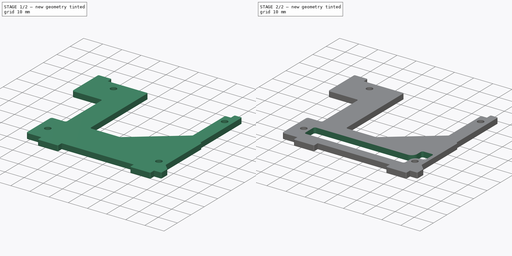
[diagram: build sequence overview — one tinted view per stage of 2, left to right]
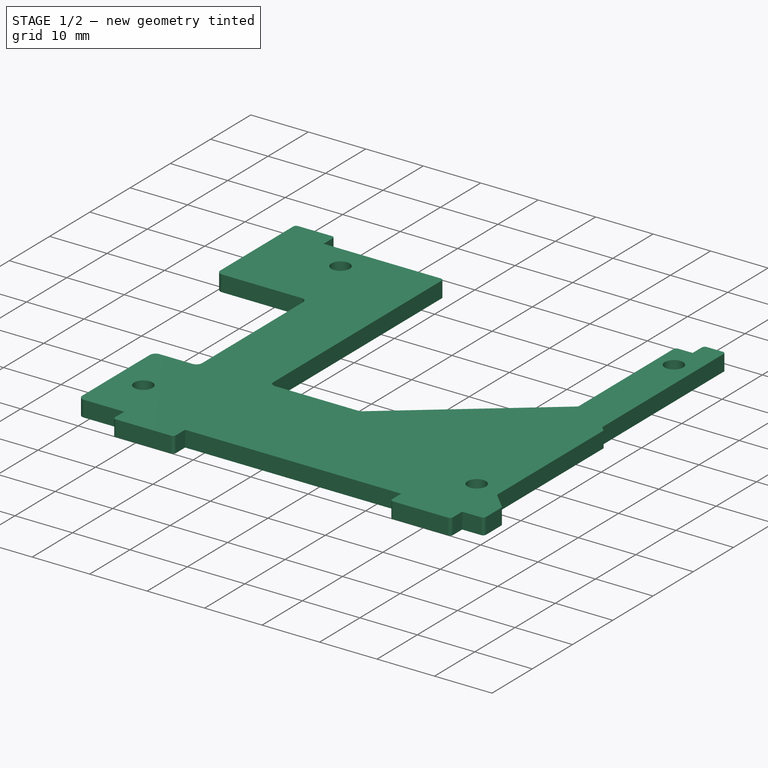
[diagram: stage 1 of 2 — iso view after this stage's code; geometry added in this stage tinted green]
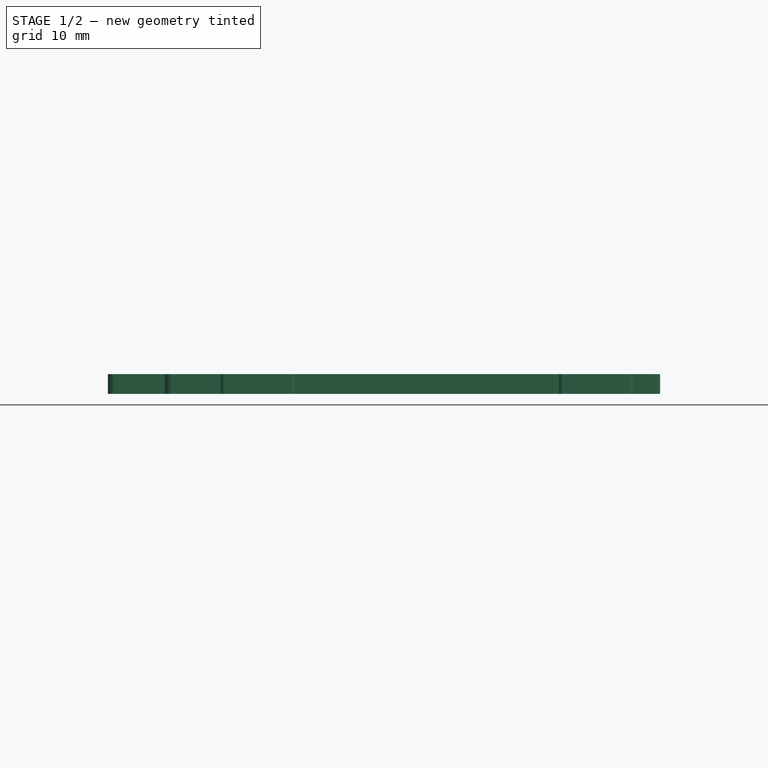
[diagram: stage 1 of 2 — front view after this stage's code; geometry added in this stage tinted green]
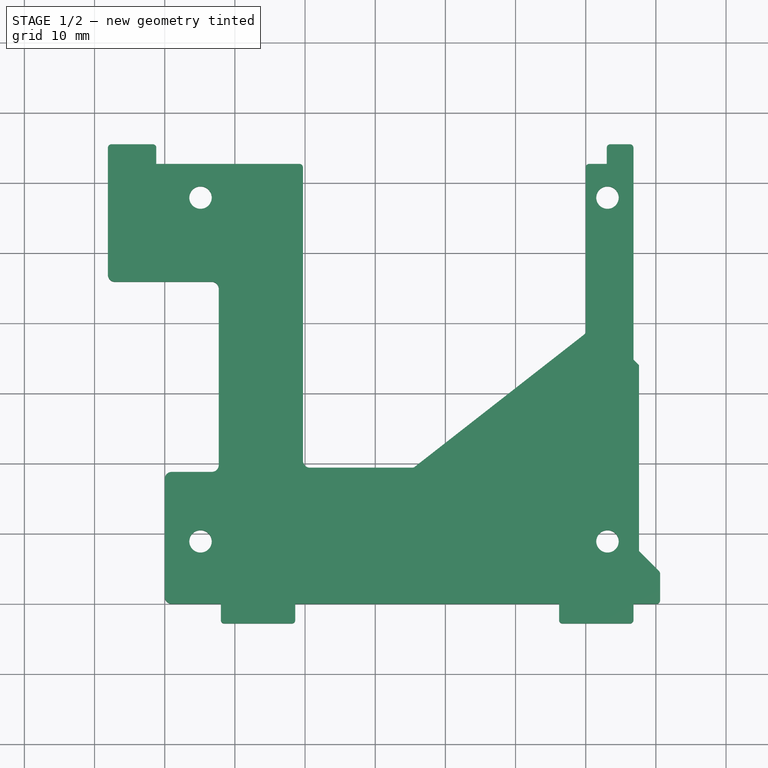
[diagram: stage 1 of 2 — top view after this stage's code; geometry added in this stage tinted green]
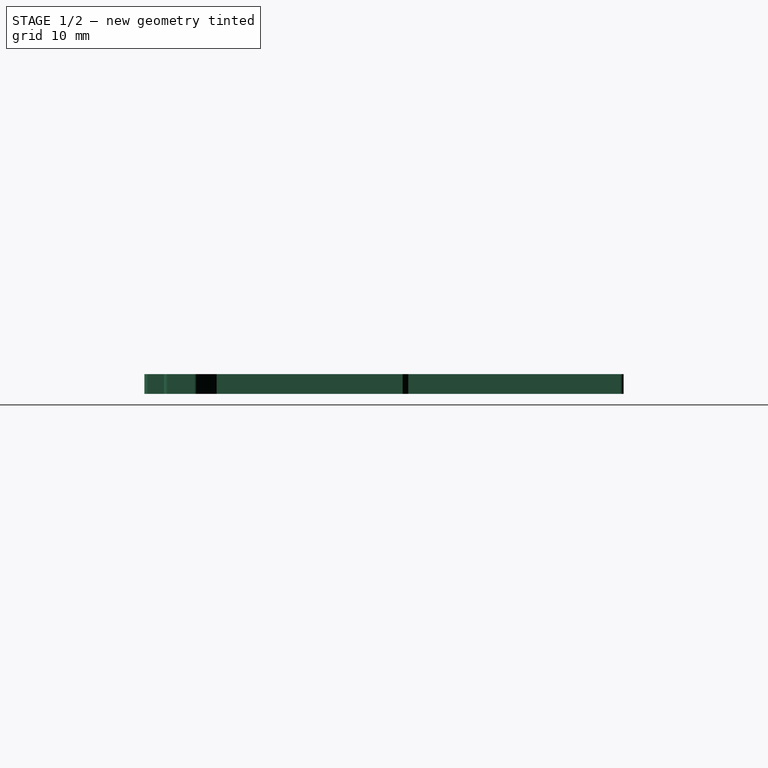
[diagram: stage 1 of 2 — right view after this stage's code; geometry added in this stage tinted green]
FCSTD DOCUMENT  (FreeCAD 0.21R33771 (Git))
Label: electronics_holder_old
License: All rights reserved
LicenseURL: http://en.wikipedia.org/wiki/All_rights_reserved
objects: Sketcher::SketchObject×2, PartDesign::Pad×1, PartDesign::Pocket×1, PartDesign::Body×1
note: 7 computed .brp shape members not serialized (recipe doc carries the construction recipe); baked Part::Feature solids carry a one-line shape summary decoded from their .brp

FEATURE [Sketcher::SketchObject] Sketch
  FullyConstrained = true
  MapMode = 5
  Support = -> [XY_Plane]
  sketch-geometry (57):
    g0: LineSegment StartX=1 StartY=0 StartZ=0 EndX=8 EndY=0 EndZ=0
    g1: LineSegment StartX=8 StartY=0 StartZ=0 EndX=8 EndY=-2.3 EndZ=0
    g2: LineSegment StartX=8.5 StartY=-2.8 StartZ=0 EndX=18.1 EndY=-2.8 EndZ=0
    g3: LineSegment StartX=18.6 StartY=-2.3 StartZ=0 EndX=18.6 EndY=0 EndZ=0
    g4: LineSegment StartX=18.6 StartY=0 StartZ=0 EndX=56.2 EndY=0 EndZ=0
    g5: LineSegment StartX=56.2 StartY=0 StartZ=0 EndX=56.2 EndY=-2.3 EndZ=0
    g6: LineSegment StartX=56.7 StartY=-2.8 StartZ=0 EndX=66.3 EndY=-2.8 EndZ=0
    g7: LineSegment StartX=66.8 StartY=-2.3 StartZ=0 EndX=66.8 EndY=0 EndZ=0
    g8: LineSegment StartX=66.8 StartY=0 StartZ=0 EndX=70.1 EndY=0 EndZ=0
    g9: LineSegment StartX=70.6 StartY=0.5 StartZ=0 EndX=70.6 EndY=4.29289 EndZ=0
    g10: LineSegment StartX=70.4536 StartY=4.64645 StartZ=0 EndX=67.6 EndY=7.5 EndZ=0
    g11: LineSegment StartX=67.6 StartY=7.5 StartZ=0 EndX=67.6 EndY=34 EndZ=0
    g12: LineSegment StartX=67.6 StartY=34 StartZ=0 EndX=66.8 EndY=34.8 EndZ=0
    g13: LineSegment StartX=66.8 StartY=34.8 StartZ=0 EndX=66.8 EndY=65 EndZ=0
    g14: LineSegment StartX=66.3 StartY=65.5 StartZ=0 EndX=63.5 EndY=65.5 EndZ=0
    g15: LineSegment StartX=63 StartY=65 StartZ=0 EndX=63 EndY=62.7 EndZ=0
    g16: LineSegment StartX=63 StartY=62.7 StartZ=0 EndX=60.5 EndY=62.7 EndZ=0
    g17: LineSegment StartX=60 StartY=62.2 StartZ=0 EndX=60 EndY=38.8 EndZ=0
    g18: LineSegment StartX=59.8078 StartY=38.4059 StartZ=0 EndX=35.6078 EndY=19.5059 EndZ=0
    g19: LineSegment StartX=35.3 StartY=19.4 StartZ=0 EndX=20.7 EndY=19.4 EndZ=0
    g20: LineSegment StartX=19.7 StartY=20.4 StartZ=0 EndX=19.7 EndY=62.2 EndZ=0
    g21: LineSegment StartX=19.2 StartY=62.7 StartZ=0 EndX=-1.2 EndY=62.7 EndZ=0
    g22: LineSegment StartX=-1.2 StartY=62.7 StartZ=0 EndX=-1.2 EndY=65 EndZ=0
    g23: LineSegment StartX=-1.7 StartY=65.5 StartZ=0 EndX=-7.6 EndY=65.5 EndZ=0
    g24: LineSegment StartX=-8.1 StartY=65 StartZ=0 EndX=-8.1 EndY=46.9 EndZ=0
    g25: LineSegment StartX=-7.1 StartY=45.9 StartZ=0 EndX=6.7 EndY=45.9 EndZ=0
    g26: LineSegment StartX=7.7 StartY=44.9 StartZ=0 EndX=7.7 EndY=19.8 EndZ=0
    g27: LineSegment StartX=6.7 StartY=18.8 StartZ=0 EndX=1 EndY=18.8 EndZ=0
    g28: LineSegment StartX=0 StartY=1 StartZ=0 EndX=0 EndY=17.8 EndZ=0
    g29: ArcOfCircle CenterX=6.7 CenterY=19.8 CenterZ=0 NormalX=0 NormalY=0 NormalZ=1 AngleXU=0 Radius=1 StartAngle=4.71239 EndAngle=6.28319
    g30: ArcOfCircle CenterX=6.7 CenterY=44.9 CenterZ=0 NormalX=0 NormalY=0 NormalZ=1 AngleXU=0 Radius=1 StartAngle=1.1e-15 EndAngle=1.5708
    g31: ArcOfCircle CenterX=-7.1 CenterY=46.9 CenterZ=0 NormalX=0 NormalY=0 NormalZ=1 AngleXU=0 Radius=1 StartAngle=3.14159 EndAngle=4.71239
    g32: ArcOfCircle CenterX=-7.6 CenterY=65 CenterZ=0 NormalX=0 NormalY=0 NormalZ=1 AngleXU=0 Radius=0.5 StartAngle=1.5708 EndAngle=3.14159
    g33: ArcOfCircle CenterX=-1.7 CenterY=65 CenterZ=0 NormalX=0 NormalY=0 NormalZ=1 AngleXU=0 Radius=0.5 StartAngle=-9.8e-15 EndAngle=1.5708
    g34: ArcOfCircle CenterX=19.2 CenterY=62.2 CenterZ=0 NormalX=0 NormalY=0 NormalZ=1 AngleXU=0 Radius=0.5 StartAngle=-1.8e-15 EndAngle=1.5708
    g35: ArcOfCircle CenterX=60.5 CenterY=62.2 CenterZ=0 NormalX=0 NormalY=0 NormalZ=1 AngleXU=0 Radius=0.5 StartAngle=1.5708 EndAngle=3.14159
    g36: ArcOfCircle CenterX=20.7 CenterY=20.4 CenterZ=0 NormalX=0 NormalY=0 NormalZ=1 AngleXU=0 Radius=1 StartAngle=3.14159 EndAngle=4.71239
    g37: ArcOfCircle CenterX=35.3 CenterY=19.9 CenterZ=0 NormalX=0 NormalY=0 NormalZ=1 AngleXU=0 Radius=0.5 StartAngle=4.71239 EndAngle=5.37543
    g38: ArcOfCircle CenterX=59.5 CenterY=38.8 CenterZ=0 NormalX=0 NormalY=0 NormalZ=1 AngleXU=0 Radius=0.5 StartAngle=5.37543 EndAngle=6.28319
    g39: ArcOfCircle CenterX=66.3 CenterY=65 CenterZ=0 NormalX=0 NormalY=0 NormalZ=1 AngleXU=0 Radius=0.5 StartAngle=6e-15 EndAngle=1.5708
    g40: ArcOfCircle CenterX=70.1 CenterY=0.5 CenterZ=0 NormalX=0 NormalY=0 NormalZ=1 AngleXU=0 Radius=0.5 StartAngle=4.71239 EndAngle=6.28319
    g41: ArcOfCircle CenterX=66.3 CenterY=-2.3 CenterZ=0 NormalX=0 NormalY=0 NormalZ=1 AngleXU=0 Radius=0.5 StartAngle=4.71239 EndAngle=6.28319
    g42: ArcOfCircle CenterX=56.7 CenterY=-2.3 CenterZ=0 NormalX=0 NormalY=0 NormalZ=1 AngleXU=0 Radius=0.5 StartAngle=3.14159 EndAngle=4.71239
    g43: ArcOfCircle CenterX=1 CenterY=17.8 CenterZ=0 NormalX=0 NormalY=0 NormalZ=1 AngleXU=0 Radius=1 StartAngle=1.5708 EndAngle=3.14159
    g44: ArcOfCircle CenterX=1 CenterY=1 CenterZ=0 NormalX=0 NormalY=0 NormalZ=1 AngleXU=0 Radius=1 StartAngle=3.14159 EndAngle=4.71239
    g45: ArcOfCircle CenterX=8.5 CenterY=-2.3 CenterZ=0 NormalX=0 NormalY=0 NormalZ=1 AngleXU=0 Radius=0.5 StartAngle=3.14159 EndAngle=4.71239
    g46: ArcOfCircle CenterX=18.1 CenterY=-2.3 CenterZ=0 NormalX=0 NormalY=0 NormalZ=1 AngleXU=0 Radius=0.5 StartAngle=4.71239 EndAngle=6.28319
    g47: ArcOfCircle CenterX=63.5 CenterY=65 CenterZ=0 NormalX=0 NormalY=0 NormalZ=1 AngleXU=0 Radius=0.5 StartAngle=1.5708 EndAngle=3.14159
    g48: ArcOfCircle CenterX=70.1 CenterY=4.29289 CenterZ=0 NormalX=0 NormalY=0 NormalZ=1 AngleXU=0 Radius=0.5 StartAngle=0 EndAngle=0.785398
    g49: Circle CenterX=5.1 CenterY=57.9 CenterZ=0 NormalX=0 NormalY=0 NormalZ=1 AngleXU=0 Radius=1.6
    g50: Circle CenterX=63.1 CenterY=57.9 CenterZ=0 NormalX=0 NormalY=0 NormalZ=1 AngleXU=0 Radius=1.6
    g51: Circle CenterX=5.1 CenterY=8.9 CenterZ=0 NormalX=0 NormalY=0 NormalZ=1 AngleXU=0 Radius=1.6
    g52: Circle CenterX=63.1 CenterY=8.9 CenterZ=0 NormalX=0 NormalY=0 NormalZ=1 AngleXU=0 Radius=1.6
    g53: LineSegment StartX=5.1 StartY=8.9 StartZ=0 EndX=5.1 EndY=57.9 EndZ=0
    g54: LineSegment StartX=5.1 StartY=57.9 StartZ=0 EndX=63.1 EndY=57.9 EndZ=0
    g55: LineSegment StartX=63.1 StartY=57.9 StartZ=0 EndX=63.1 EndY=8.9 EndZ=0
    g56: LineSegment StartX=63.1 StartY=8.9 StartZ=0 EndX=5.1 EndY=8.9 EndZ=0
  constraints (147):
    c: PointOnObject(g0,g-1)
    c: Coincident(g1,g0)
    c: Vertical(g1)
    c: PointOnObject(g3,g-1)
    c: Vertical(g3)
    c: Coincident(g4,g3)
    c: PointOnObject(g4,g-1)
    c: Coincident(g5,g4)
    c: Horizontal(g6)
    c: PointOnObject(g7,g-1)
    c: Vertical(g7)
    c: Horizontal(g8)
    c: Vertical(g9)
    c: Coincident(g11,g10)
    c: Vertical(g11)
    c: Coincident(g12,g11)
    c: Coincident(g13,g12)
    c: Vertical(g13)
    c: Vertical(g15)
    c: Coincident(g16,g15)
    c: Horizontal(g16)
    c: Vertical(g17)
    c: Horizontal(g19)
    c: Vertical(g20)
    c: Horizontal(g21)
    c: Coincident(g22,g21)
    c: Vertical(g22)
    c: Horizontal(g23)
    c: Vertical(g24)
    c: Horizontal(g25)
    c: Vertical(g26)
    c: Horizontal(g27)
    c: Vertical(g28)
    c: Tangent(g26,g29) = 1.5708
    c: Tangent(g27,g29) = 1.5708
    c: Tangent(g25,g30) = 1.5708
    c: Tangent(g26,g30) = 1.5708
    c: Tangent(g24,g31) = -1.5708
    c: Tangent(g25,g31) = -1.5708
    c: Tangent(g24,g32) = -1.5708
    c: Tangent(g23,g32) = -1.5708
    c: Tangent(g23,g33) = -1.5708
    c: Tangent(g22,g33) = -1.5708
    c: Tangent(g21,g34) = -1.5708
    c: Tangent(g20,g34) = -1.5708
    c: Tangent(g16,g35) = -1.5708
    c: Tangent(g17,g35) = -1.5708
    c: Tangent(g20,g36) = 1.5708
    c: Tangent(g19,g36) = 1.5708
    c: Tangent(g18,g37) = 1.5708
    c: Tangent(g19,g37) = 1.5708
    c: Tangent(g18,g38) = 1.5708
    c: Tangent(g17,g38) = 1.5708
    c: Tangent(g14,g39) = -1.5708
    c: Tangent(g13,g39) = -1.5708
    c: Tangent(g8,g40) = -1.5708
    c: Tangent(g9,g40) = -1.5708
    c: Tangent(g7,g41) = -1.5708
    c: Tangent(g6,g41) = -1.5708
    c: Tangent(g5,g42) = -1.5708
    c: Tangent(g6,g42) = -1.5708
    c: Tangent(g27,g43) = -1.5708
    c: Tangent(g28,g43) = 1.5708
    c: Tangent(g28,g44) = 1.5708
    c: Tangent(g0,g44) = -1.5708
    c: Tangent(g1,g45) = -1.5708
    c: Tangent(g2,g45) = -1.5708
    c: Tangent(g3,g46) = -1.5708
    c: Tangent(g2,g46) = -1.5708
    c: Equal(g44,g43)
    c: Equal(g29,g44)
    c: Equal(g30,g44)
    c: Equal(g31,g44)
    c: Equal(g44,g36)
    c: Radius(g44) = 1
    c: Horizontal(g0)
    c: Horizontal(g2)
    c: Equal(g32,g33)
    c: Equal(g32,g45)
    c: Equal(g46,g32)
    c: Equal(g34,g32)
    c: Equal(g32,g37)
    c: Equal(g38,g32)
    c: Equal(g35,g32)
    c: Horizontal(g14)
    c: Tangent(g15,g47) = -1.5708
    c: Tangent(g14,g47) = -1.5708
    c: Equal(g47,g32)
    c: Equal(g39,g32)
    c: Tangent(g9,g48) = -1.5708
    c: Tangent(g10,g48) = -1.5708
    c: Angle(g10,g11) = 2.35619
    c: Equal(g48,g32)
    c: Equal(g32,g40)
    c: Vertical(g5)
    c: Coincident(g8,g7)
    c: Equal(g41,g32)
    c: Equal(g32,g42)
    c: Radius(g32) = 0.5
    c: DistanceX(g28,g0) = 8
    c: DistanceX(g0,g3) = 10.6
    c: Equal(g2,g6)
    c: DistanceX(g0,g7) = 58.8
    c: DistanceX(g28,g9) = 70.6
    c: DistanceX(g28,g10) = 67.6
    c: DistanceY(g7,g10) = 7.5
    c: DistanceX(g28,g26) = 7.7
    c: DistanceX(g26,g20) = 12
    c: DistanceX(g24,g26) = 15.8
    c: DistanceX(g24,g21) = 6.9
    c: DistanceY(g7,g11) = 34
    c: DistanceX(g20,g17) = 40.3
    c: DistanceX(g17,g12) = 6.8
    c: DistanceX(g17,g15) = 3
    c: PointOnObject(g21,g16)
    c: DistanceY(g0,g27) = 18.8
    c: DistanceY(g3,g19) = 19.4
    c: DistanceX(g20,g37) = 15.6
    c: DistanceY(g19,g17) = 19.4
    c: PointOnObject(g-1,g28)
    c: PointOnObject(g2,g6)
    c: DistanceY(g2,g0) = 2.8
    c: DistanceY(g21,g23) = 2.8
    c: PointOnObject(g23,g14)
    c: DistanceY(g27,g25) = 27.1
    c: DistanceY(g0,g21) = 62.7
    c: Angle(g12,g13) = 2.35619
    c: Coincident(g53,g51)
    c: Coincident(g53,g49)
    c: Vertical(g53)
    c: Coincident(g54,g49)
    c: Coincident(g54,g50)
    c: Horizontal(g54)
    c: Coincident(g55,g50)
    c: Coincident(g55,g52)
    c: Coincident(g56,g52)
    c: Coincident(g56,g51)
    c: Horizontal(g56)
    c: Vertical(g55)
    c: Equal(g51,g50)
    c: Equal(g51,g52)
    c: Diameter(g51) = 3.2
    c: DistanceX(g28,g51) = 5.1
    c: DistanceY(g0,g51) = 8.9
    c: DistanceY(g51,g49) = 49
    c: DistanceX(g51,g52) = 58
    c: Equal(g49,g51)
FEATURE [PartDesign::Pad] Pad
  Direction = (0,0,1)
  Length = 2.8
  Length2 = 10
  Profile = -> Sketch
  ReferenceAxis = -> Sketch [N_Axis]
  Type = 0
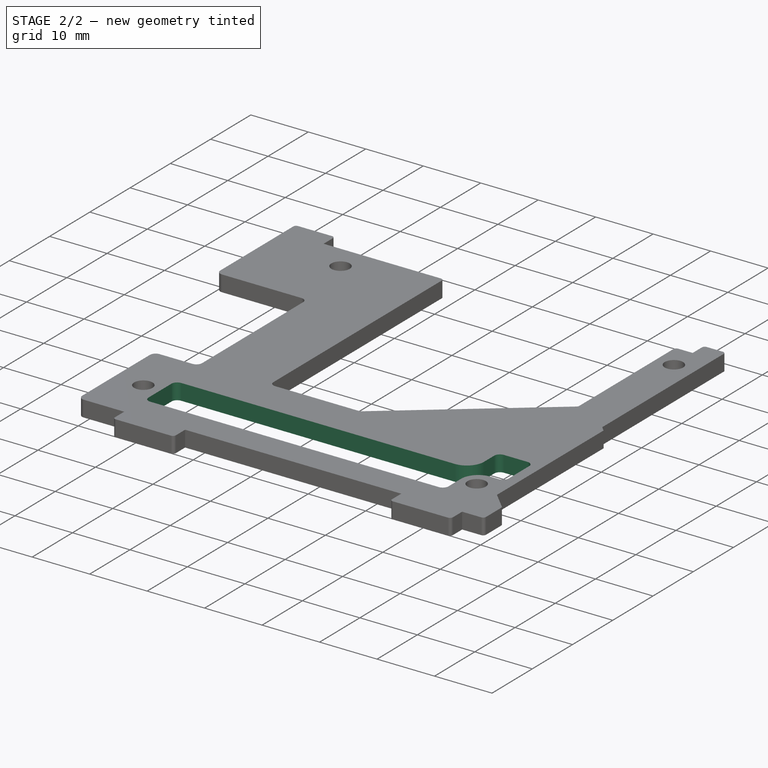
[diagram: stage 2 of 2 — iso view after this stage's code; geometry added in this stage tinted green]
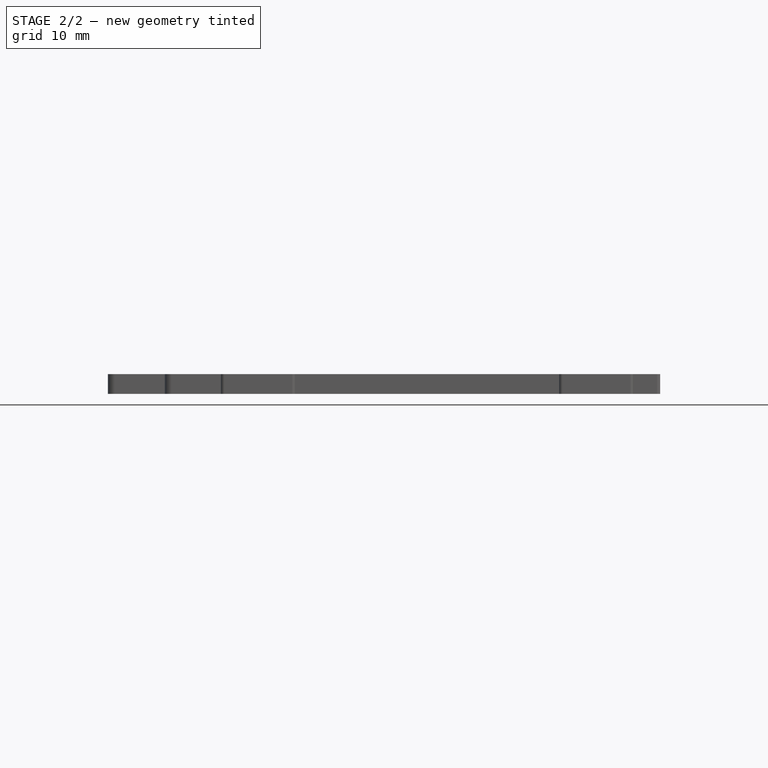
[diagram: stage 2 of 2 — front view after this stage's code; geometry added in this stage tinted green]
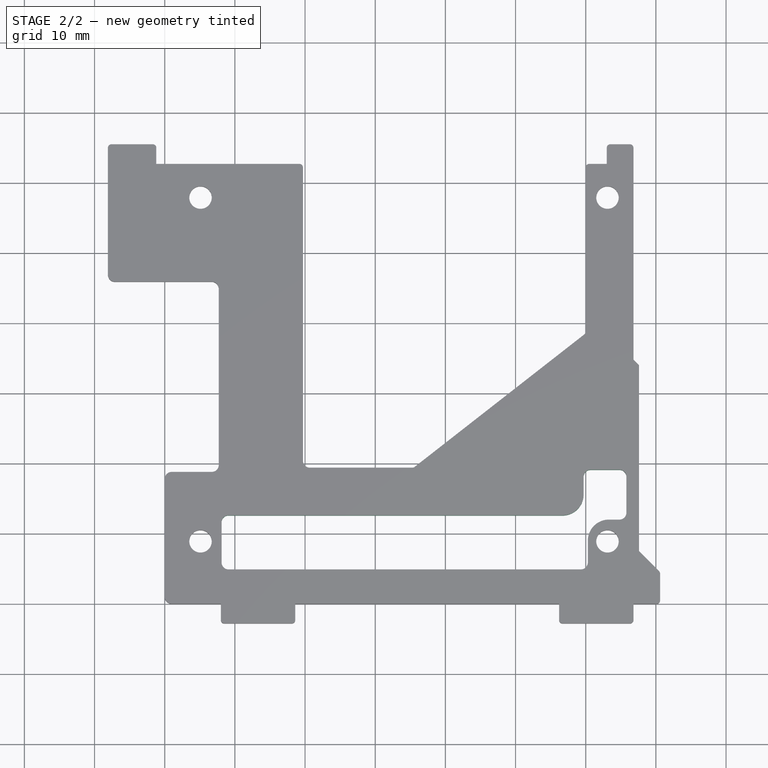
[diagram: stage 2 of 2 — top view after this stage's code; geometry added in this stage tinted green]
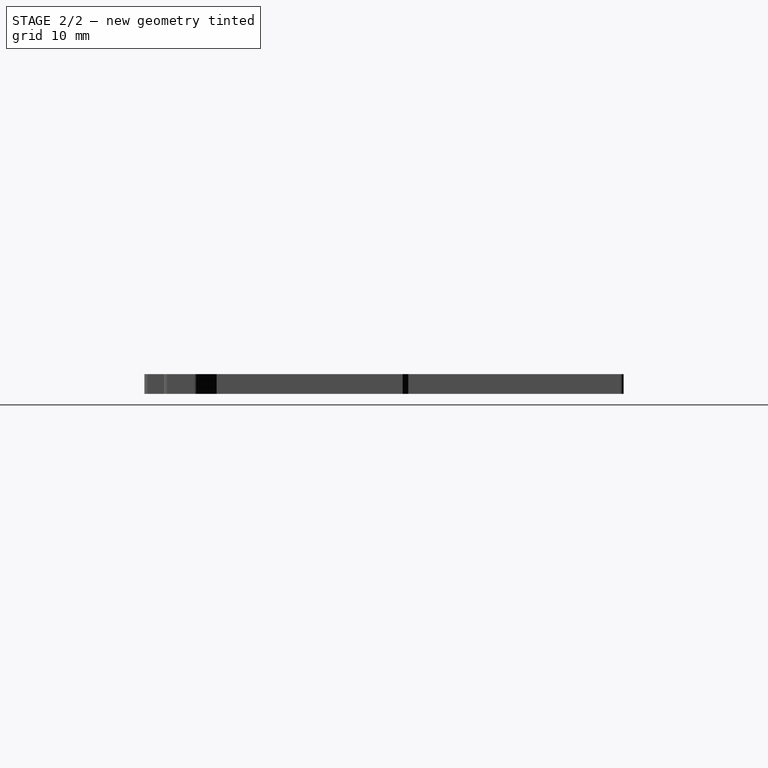
[diagram: stage 2 of 2 — right view after this stage's code; geometry added in this stage tinted green]
FEATURE [Sketcher::SketchObject] Sketch001
  ExternalGeometry = -> [Pad]
  FullyConstrained = true
  MapMode = 5
  Support = -> [XY_Plane]
  sketch-geometry (16):
    g0: LineSegment StartX=64.8 StartY=19.1 StartZ=0 EndX=60.7 EndY=19.1 EndZ=0
    g1: LineSegment StartX=59.7 StartY=18.1 StartZ=0 EndX=59.7 EndY=15.6 EndZ=0
    g2: LineSegment StartX=63.3 StartY=12 StartZ=0 EndX=64.8 EndY=12 EndZ=0
    g3: LineSegment StartX=65.8 StartY=13 StartZ=0 EndX=65.8 EndY=18.1 EndZ=0
    g4: LineSegment StartX=56.7 StartY=12.6 StartZ=0 EndX=9.1 EndY=12.6 EndZ=0
    g5: LineSegment StartX=8.1 StartY=11.6 StartZ=0 EndX=8.1 EndY=5.9 EndZ=0
    g6: LineSegment StartX=9.1 StartY=4.9 StartZ=0 EndX=59.3 EndY=4.9 EndZ=0
    g7: LineSegment StartX=60.3 StartY=5.9 StartZ=0 EndX=60.3 EndY=9 EndZ=0
    g8: ArcOfCircle CenterX=64.8 CenterY=13 CenterZ=0 NormalX=0 NormalY=0 NormalZ=1 AngleXU=0 Radius=1 StartAngle=4.71239 EndAngle=6.28319
    g9: ArcOfCircle CenterX=64.8 CenterY=18.1 CenterZ=0 NormalX=0 NormalY=0 NormalZ=1 AngleXU=0 Radius=1 StartAngle=1e-16 EndAngle=1.5708
    g10: ArcOfCircle CenterX=60.7 CenterY=18.1 CenterZ=0 NormalX=0 NormalY=0 NormalZ=1 AngleXU=0 Radius=1 StartAngle=1.5708 EndAngle=3.14159
    g11: ArcOfCircle CenterX=56.7 CenterY=15.6 CenterZ=0 NormalX=0 NormalY=0 NormalZ=1 AngleXU=0 Radius=3 StartAngle=4.71239 EndAngle=6.28319
    g12: ArcOfCircle CenterX=63.3 CenterY=9 CenterZ=0 NormalX=0 NormalY=0 NormalZ=1 AngleXU=0 Radius=3 StartAngle=1.5708 EndAngle=3.14159
    g13: ArcOfCircle CenterX=59.3 CenterY=5.9 CenterZ=0 NormalX=0 NormalY=0 NormalZ=1 AngleXU=0 Radius=1 StartAngle=4.71239 EndAngle=6.28319
    g14: ArcOfCircle CenterX=9.1 CenterY=5.9 CenterZ=0 NormalX=0 NormalY=0 NormalZ=1 AngleXU=0 Radius=1 StartAngle=3.14159 EndAngle=4.71239
    g15: ArcOfCircle CenterX=9.1 CenterY=11.6 CenterZ=0 NormalX=0 NormalY=0 NormalZ=1 AngleXU=0 Radius=1 StartAngle=1.5708 EndAngle=3.14159
  constraints (40):
    c: Horizontal(g0)
    c: Horizontal(g2)
    c: Vertical(g1)
    c: Vertical(g3)
    c: Horizontal(g4)
    c: Horizontal(g6)
    c: Vertical(g5)
    c: Vertical(g7)
    c: Tangent(g2,g8) = -1.5708
    c: Tangent(g3,g8) = -1.5708
    c: Tangent(g0,g9) = -1.5708
    c: Tangent(g3,g9) = -1.5708
    c: Tangent(g0,g10) = -1.5708
    c: Tangent(g1,g10) = -1.5708
    c: Tangent(g1,g11) = 1.5708
    c: Tangent(g4,g11) = 1.5708
    c: Tangent(g2,g12) = 1.5708
    c: Tangent(g7,g12) = 1.5708
    c: Tangent(g6,g13) = -1.5708
    c: Tangent(g7,g13) = -1.5708
    c: Tangent(g5,g14) = -1.5708
    c: Tangent(g6,g14) = -1.5708
    c: Tangent(g4,g15) = -1.5708
    c: Tangent(g5,g15) = -1.5708
    c: Equal(g14,g-5)
    c: Equal(g14,g15)
    c: Equal(g14,g13)
    c: Equal(g8,g14)
    c: Equal(g9,g14)
    c: Equal(g10,g14)
    c: Equal(g12,g11)
    c: Radius(g12) = 3
    c: DistanceY(g6,g4) = 7.7
    c: DistanceY(g-4,g6) = 4.9
    c: DistanceX(g-5,g5) = 8.1
    c: DistanceX(g5,g7) = 52.2
    c: DistanceY(g6,g2) = 7.1
    c: DistanceX(g7,g3) = 5.5
    c: DistanceY(g2,g0) = 7.1
    c: DistanceX(g1,g3) = 6.1
FEATURE [PartDesign::Pocket] Pocket
  BaseFeature = -> Pad
  Direction = (0,0,-1)
  Length = 5
  Length2 = 5
  Profile = -> Sketch001
  ReferenceAxis = -> Sketch001 [N_Axis]
  Reversed = true
  Type = 1
FEATURE [PartDesign::Body] Body
  Group = -> [Sketch,Pad,Sketch001,Pocket]
  Origin = -> Origin
  Tip = -> Pocket
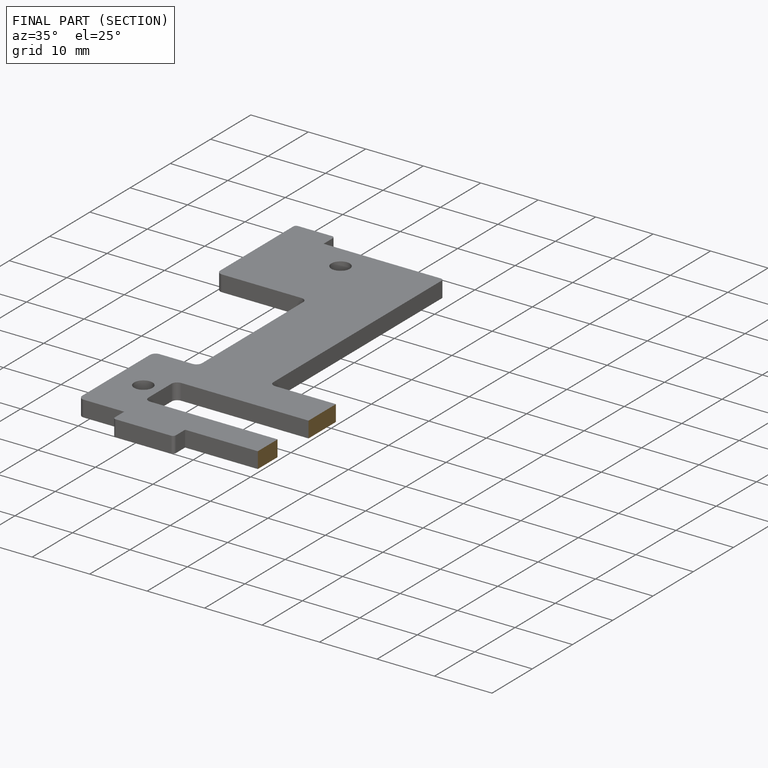
[diagram: finished part — half-section view (interior)]
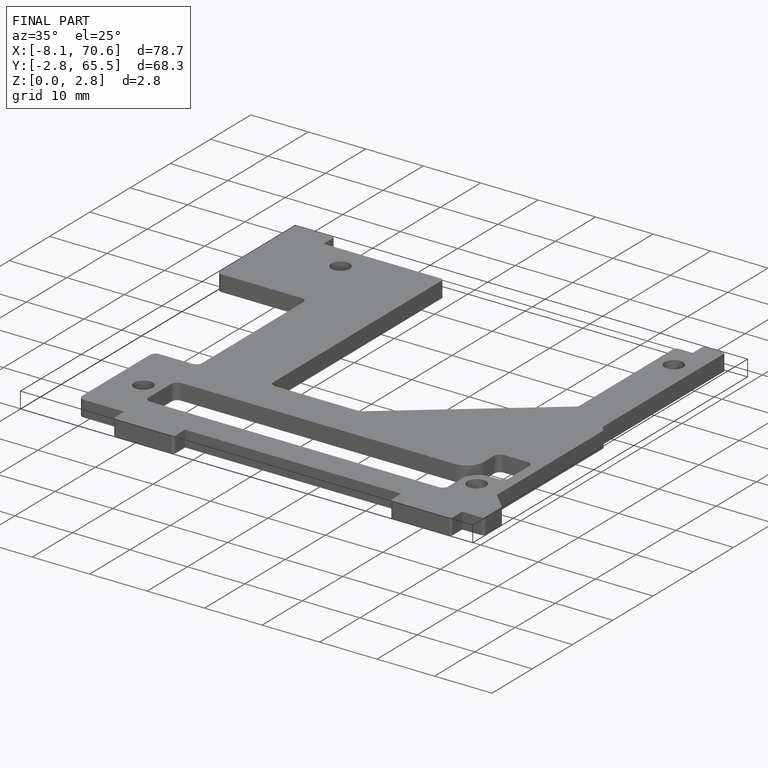
[diagram: finished part — iso view with bounding-box wireframe]
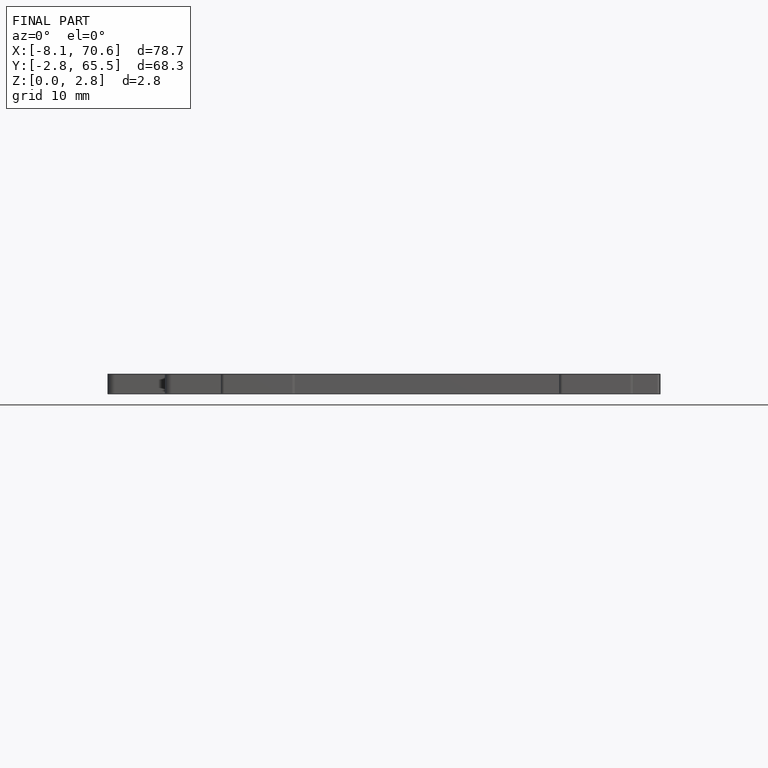
[diagram: finished part — front view with bounding-box wireframe]
